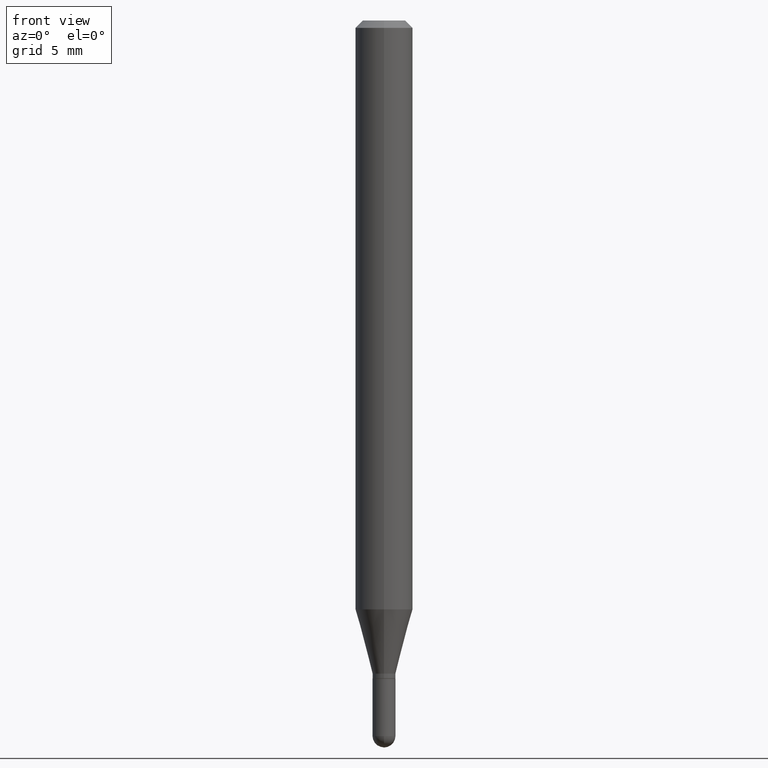
[diagram: clean part render]
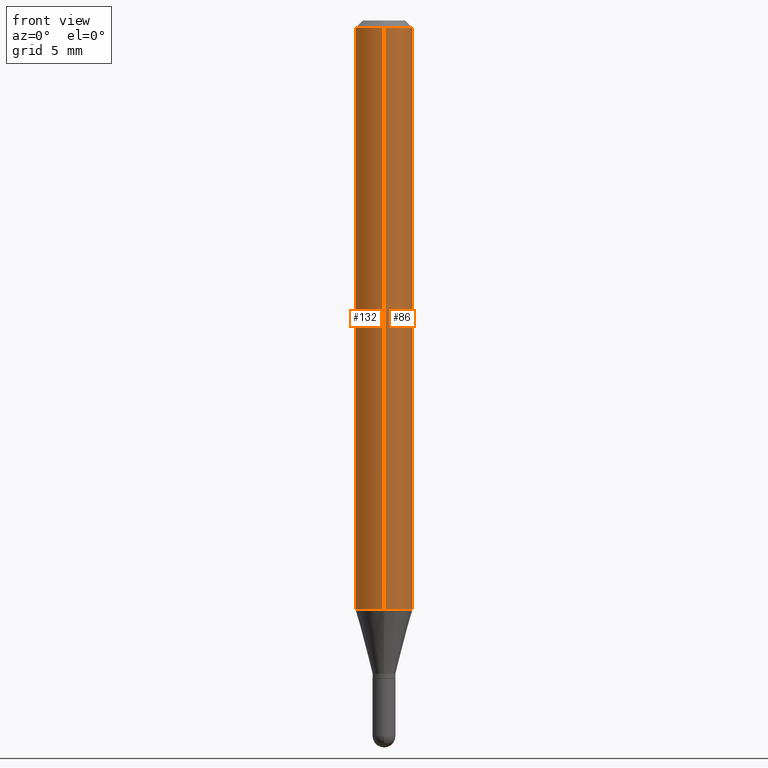
[diagram: same view with one multi-face feature highlighted, each face labeled with its STEP entity id]
A machine part, front view. The highlighted faces form ONE feature: a constant-radius fillet chain: 2 tangent blend faces with common blend radius 1.4999 mm. The faces share edges in the B-rep.
Their STEP definitions:
[1] entity #132 (Cylinder):
#9 = CARTESIAN_POINT ( 'NONE',  ( 4.195754854663390985E-16, 0.05904999999999999832, -2.061774860013610647E-16 ) ) ;
#40 = CARTESIAN_POINT ( 'NONE',  ( 3.668105419253344629E-31, -5.237362049145528666E-17, -0.01500000000000009139 ) ) ;
#41 = CARTESIAN_POINT ( 'NONE',  ( 4.195754854663689766E-16, 0.05904999999999995669, -0.01500000000000029955 ) ) ;
#49 = DIRECTION ( 'NONE',  ( -6.982962677686265922E-15, -1.000000000000000000, 4.626330217890369336E-15 ) ) ;
#76 = CYLINDRICAL_SURFACE ( 'NONE', #249, 0.05904999999999999832 ) ;
#104 = ORIENTED_EDGE ( 'NONE', *, *, #485, .F. ) ;
#105 = VERTEX_POINT ( 'NONE', #123 ) ;
#113 = LINE ( 'NONE', #9, #135 ) ;
#114 = DIRECTION ( 'NONE',  ( -2.445403612835548349E-29, 3.491574699430331194E-15, 1.000000000000000000 ) ) ;
#123 = CARTESIAN_POINT ( 'NONE',  ( -4.123439461173736383E-16, -0.05905000000000005383, -0.01499999999999988495 ) ) ;
#132 = ADVANCED_FACE ( 'NONE', ( #507 ), #76, .T. ) ;
#135 = VECTOR ( 'NONE', #367, 39.37007874015748143 ) ;
#138 = CARTESIAN_POINT ( 'NONE',  ( -4.123439461173444997E-16, -0.05905000000000425187, -1.211798798871684513 ) ) ;
#148 = VERTEX_POINT ( 'NONE', #309 ) ;
#160 = CIRCLE ( 'NONE', #166, 0.05904999999999999832 ) ;
#164 = DIRECTION ( 'NONE',  ( -2.445403612835548629E-29, 3.491574699430331194E-15, 1.000000000000000000 ) ) ;
#166 = AXIS2_PLACEMENT_3D ( 'NONE', #40, #200, #354 ) ;
#170 = EDGE_CURVE ( 'NONE', #460, #105, #160, .T. ) ;
#195 = VECTOR ( 'NONE', #164, 39.37007874015748143 ) ;
#200 = DIRECTION ( 'NONE',  ( -2.445403612835548349E-29, 3.491574699430331194E-15, 1.000000000000000000 ) ) ;
#209 = CIRCLE ( 'NONE', #296, 0.05904999999999999832 ) ;
#214 = CARTESIAN_POINT ( 'NONE',  ( 2.963337160790595870E-29, -4.231086026940438295E-15, -1.211798798871684735 ) ) ;
#223 = EDGE_CURVE ( 'NONE', #340, #105, #489, .T. ) ;
#249 = AXIS2_PLACEMENT_3D ( 'NONE', #306, #114, #268 ) ;
#257 = EDGE_CURVE ( 'NONE', #148, #340, #209, .T. ) ;
#268 = DIRECTION ( 'NONE',  ( -6.982962677686265922E-15, -1.000000000000000000, 3.491574699430331588E-15 ) ) ;
#296 = AXIS2_PLACEMENT_3D ( 'NONE', #214, #327, #49 ) ;
#306 = CARTESIAN_POINT ( 'NONE',  ( 0.000000000000000000, 0.000000000000000000, 0.000000000000000000 ) ) ;
#309 = CARTESIAN_POINT ( 'NONE',  ( 4.195754854663685822E-16, 0.05904999999999573784, -1.211798798871684735 ) ) ;
#327 = DIRECTION ( 'NONE',  ( -2.445403612835548349E-29, 3.491574699430331194E-15, 1.000000000000000000 ) ) ;
#339 = EDGE_LOOP ( 'NONE', ( #104, #426, #509, #494 ) ) ;
#340 = VERTEX_POINT ( 'NONE', #138 ) ;
#354 = DIRECTION ( 'NONE',  ( -6.982962677686265922E-15, -1.000000000000000000, 3.505890868245046092E-15 ) ) ;
#362 = CARTESIAN_POINT ( 'NONE',  ( -4.123439461173739834E-16, -0.05904999999999999832, 2.061774860013610647E-16 ) ) ;
#367 = DIRECTION ( 'NONE',  ( -2.445403612835548629E-29, 3.491574699430331194E-15, 1.000000000000000000 ) ) ;
#426 = ORIENTED_EDGE ( 'NONE', *, *, #257, .T. ) ;
#460 = VERTEX_POINT ( 'NONE', #41 ) ;
#485 = EDGE_CURVE ( 'NONE', #148, #460, #113, .T. ) ;
#489 = LINE ( 'NONE', #362, #195 ) ;
#494 = ORIENTED_EDGE ( 'NONE', *, *, #170, .F. ) ;
#507 = FACE_OUTER_BOUND ( 'NONE', #339, .T. ) ;
#509 = ORIENTED_EDGE ( 'NONE', *, *, #223, .T. ) ;
[2] entity #86 (Cylinder):
#9 = CARTESIAN_POINT ( 'NONE',  ( 4.195754854663390985E-16, 0.05904999999999999832, -2.061774860013610647E-16 ) ) ;
#16 = ORIENTED_EDGE ( 'NONE', *, *, #243, .F. ) ;
#34 = EDGE_CURVE ( 'NONE', #340, #148, #321, .T. ) ;
#41 = CARTESIAN_POINT ( 'NONE',  ( 4.195754854663689766E-16, 0.05904999999999995669, -0.01500000000000029955 ) ) ;
#46 = AXIS2_PLACEMENT_3D ( 'NONE', #80, #358, #480 ) ;
#80 = CARTESIAN_POINT ( 'NONE',  ( 0.000000000000000000, 0.000000000000000000, 0.000000000000000000 ) ) ;
#86 = ADVANCED_FACE ( 'NONE', ( #512 ), #162, .T. ) ;
#105 = VERTEX_POINT ( 'NONE', #123 ) ;
#113 = LINE ( 'NONE', #9, #135 ) ;
#123 = CARTESIAN_POINT ( 'NONE',  ( -4.123439461173736383E-16, -0.05905000000000005383, -0.01499999999999988495 ) ) ;
#126 = DIRECTION ( 'NONE',  ( -6.982962677686265922E-15, -1.000000000000000000, 3.505890868245046092E-15 ) ) ;
#127 = CIRCLE ( 'NONE', #328, 0.05904999999999999832 ) ;
#135 = VECTOR ( 'NONE', #367, 39.37007874015748143 ) ;
#138 = CARTESIAN_POINT ( 'NONE',  ( -4.123439461173444997E-16, -0.05905000000000425187, -1.211798798871684513 ) ) ;
#142 = ORIENTED_EDGE ( 'NONE', *, *, #485, .T. ) ;
#148 = VERTEX_POINT ( 'NONE', #309 ) ;
#162 = CYLINDRICAL_SURFACE ( 'NONE', #46, 0.05904999999999999832 ) ;
#164 = DIRECTION ( 'NONE',  ( -2.445403612835548629E-29, 3.491574699430331194E-15, 1.000000000000000000 ) ) ;
#195 = VECTOR ( 'NONE', #164, 39.37007874015748143 ) ;
#219 = CARTESIAN_POINT ( 'NONE',  ( 2.963337160790595870E-29, -4.231086026940438295E-15, -1.211798798871684735 ) ) ;
#223 = EDGE_CURVE ( 'NONE', #340, #105, #489, .T. ) ;
#243 = EDGE_CURVE ( 'NONE', #105, #460, #127, .T. ) ;
#309 = CARTESIAN_POINT ( 'NONE',  ( 4.195754854663685822E-16, 0.05904999999999573784, -1.211798798871684735 ) ) ;
#321 = CIRCLE ( 'NONE', #423, 0.05904999999999999832 ) ;
#328 = AXIS2_PLACEMENT_3D ( 'NONE', #481, #371, #126 ) ;
#337 = DIRECTION ( 'NONE',  ( -6.982962677686265922E-15, -1.000000000000000000, 4.626330217890369336E-15 ) ) ;
#340 = VERTEX_POINT ( 'NONE', #138 ) ;
#348 = ORIENTED_EDGE ( 'NONE', *, *, #223, .F. ) ;
#358 = DIRECTION ( 'NONE',  ( -2.445403612835548349E-29, 3.491574699430331194E-15, 1.000000000000000000 ) ) ;
#362 = CARTESIAN_POINT ( 'NONE',  ( -4.123439461173739834E-16, -0.05904999999999999832, 2.061774860013610647E-16 ) ) ;
#367 = DIRECTION ( 'NONE',  ( -2.445403612835548629E-29, 3.491574699430331194E-15, 1.000000000000000000 ) ) ;
#371 = DIRECTION ( 'NONE',  ( -2.445403612835548349E-29, 3.491574699430331194E-15, 1.000000000000000000 ) ) ;
#373 = ORIENTED_EDGE ( 'NONE', *, *, #34, .T. ) ;
#423 = AXIS2_PLACEMENT_3D ( 'NONE', #219, #502, #337 ) ;
#460 = VERTEX_POINT ( 'NONE', #41 ) ;
#471 = EDGE_LOOP ( 'NONE', ( #373, #142, #16, #348 ) ) ;
#480 = DIRECTION ( 'NONE',  ( -6.982962677686265922E-15, -1.000000000000000000, 3.491574699430331588E-15 ) ) ;
#481 = CARTESIAN_POINT ( 'NONE',  ( 3.668105419253344629E-31, -5.237362049145528666E-17, -0.01500000000000009139 ) ) ;
#485 = EDGE_CURVE ( 'NONE', #148, #460, #113, .T. ) ;
#489 = LINE ( 'NONE', #362, #195 ) ;
#502 = DIRECTION ( 'NONE',  ( -2.445403612835548349E-29, 3.491574699430331194E-15, 1.000000000000000000 ) ) ;
#512 = FACE_OUTER_BOUND ( 'NONE', #471, .T. ) ;